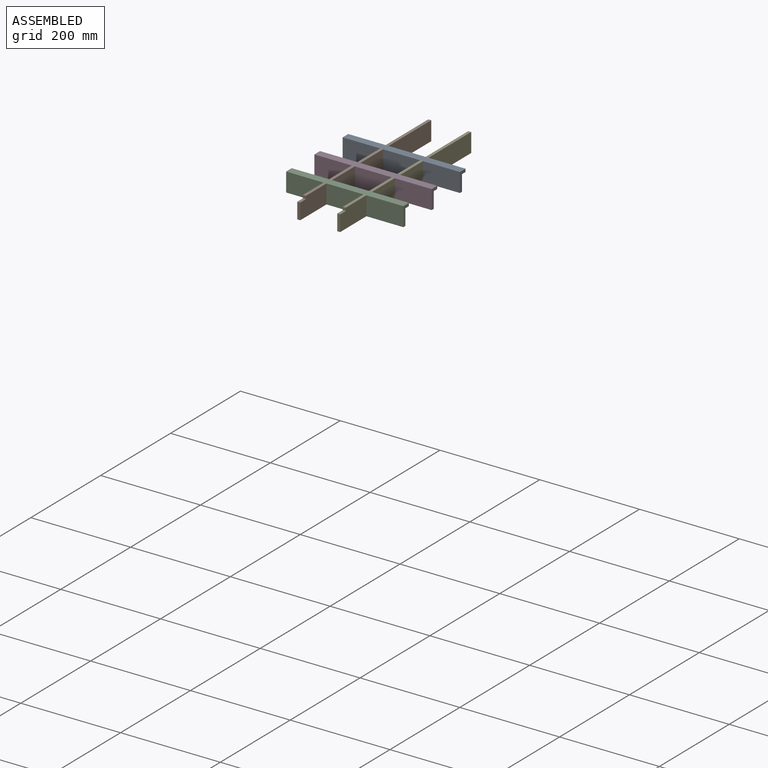
[diagram: assembled view]
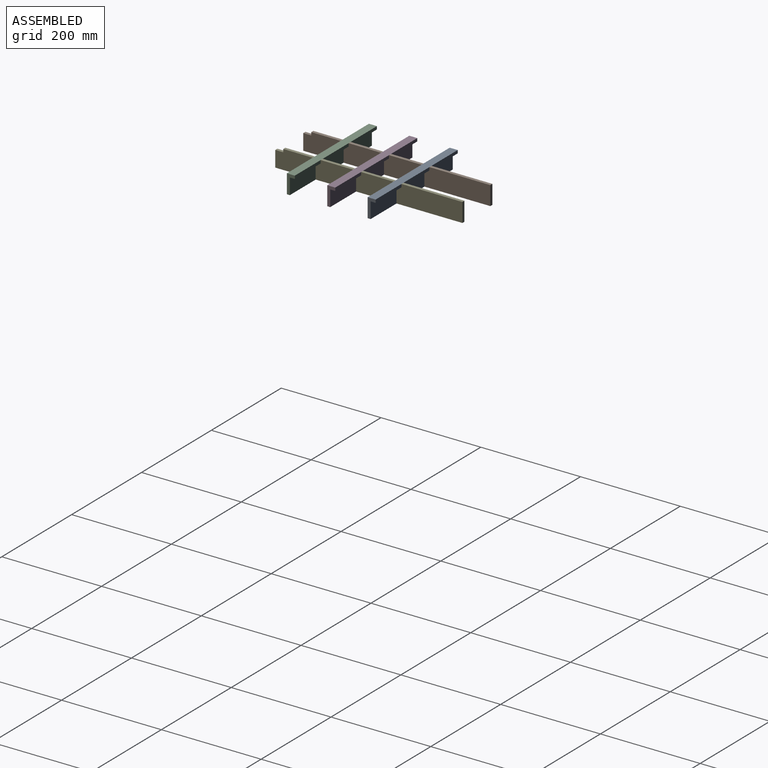
[diagram: assembled view, second angle]
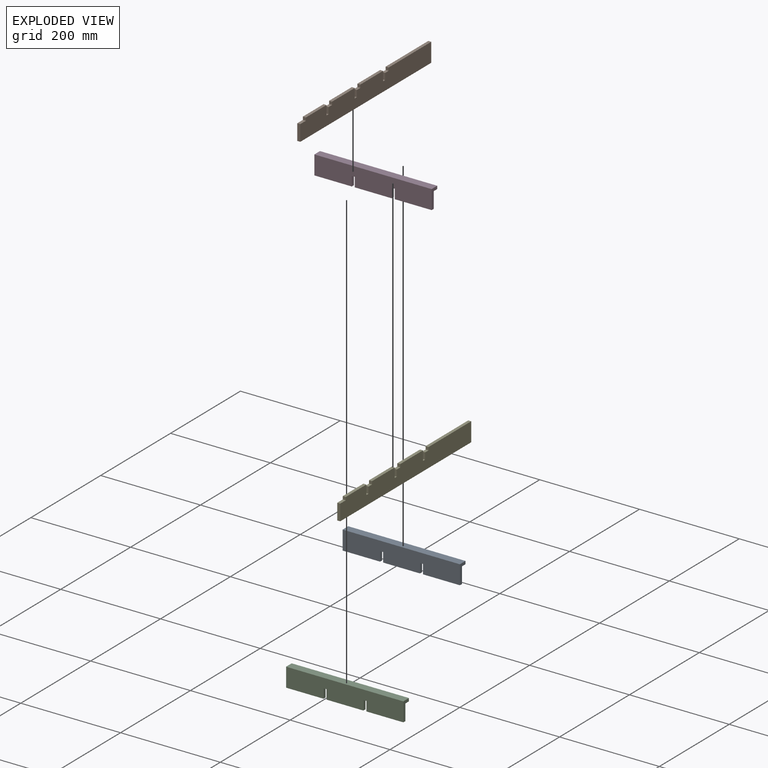
[diagram: exploded view]
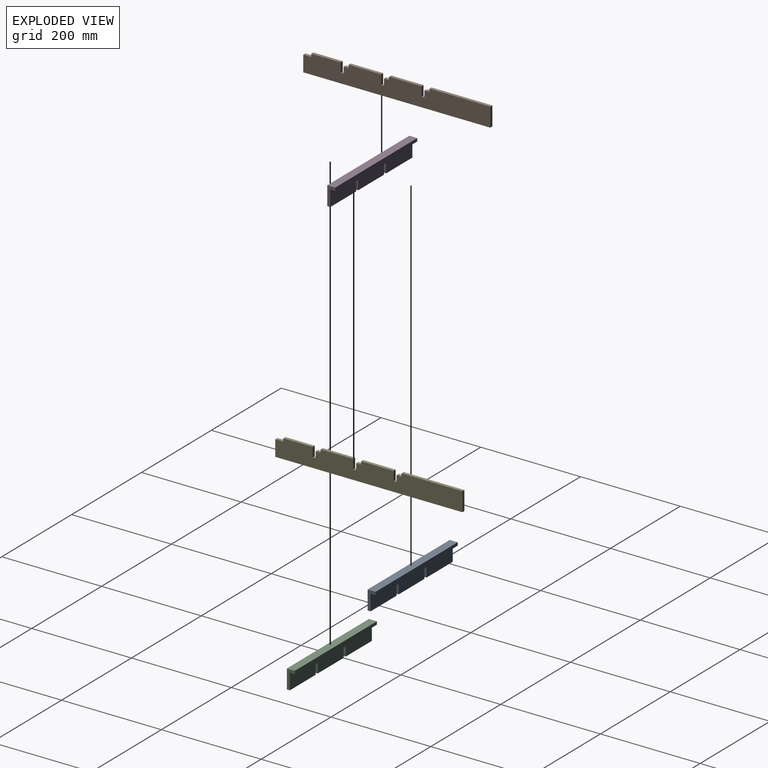
[diagram: exploded view, second angle]
ASSEMBLY  parts=5 mates=4
PART A: 16 faces, bbox 235x16x38 mm
  f0: plane 38x16mm, normal (-1,0,0), area 288mm2, adj f2,f11,f12,f13,f14,f15
  f1: plane 38x16mm, normal (1,0,0), area 288mm2, adj f2,f3,f12,f13,f14,f15
  f2: plane 235x38mm, normal (0,-1,0), area 8702mm2, adj f0,f1,f3,f4,f5,f6,f7,f8
  f3: plane 75x6mm, normal (0,0,1), area 450mm2, adj f1,f2,f4,f12
  f4: plane 19x6mm, normal (-1,0,0), area 114mm2, adj f2,f3,f5,f12
  f5: plane 6x6mm, normal (0,0,1), area 36mm2, adj f2,f4,f6,f12
  f6: plane 19x6mm, normal (1,0,0), area 114mm2, adj f2,f5,f7,f12
  f7: plane 74x6mm, normal (0,0,1), area 444mm2, adj f2,f6,f8,f12
  f8: plane 19x6mm, normal (-1,0,0), area 114mm2, adj f2,f7,f9,f12
  f9: plane 6x6mm, normal (0,0,1), area 36mm2, adj f2,f8,f10,f12
  f10: plane 19x6mm, normal (1,0,0), area 114mm2, adj f2,f9,f11,f12
  f11: plane 74x6mm, normal (0,0,1), area 444mm2, adj f0,f2,f10,f12
  f12: plane 235x32mm, normal (0,1,0), area 7292mm2, adj f0,f1,f3,f4,f5,f6,f7,f8
  f13: plane 235x10mm, normal (0,0,1), area 2350mm2, adj f0,f1,f12,f15
  f14: plane 235x16mm, normal (0,0,-1), area 3760mm2, adj f0,f1,f2,f15
  f15: plane 235x6mm, normal (0,1,0), area 1410mm2, adj f0,f1,f13,f14
PART B: 26 faces, bbox 6x375x38 mm
  f0: plane 6x6mm, normal (0,-1,0), area 36mm2, adj f1,f23,f24,f25
  f1: plane 65x6mm, normal (0,0,-1), area 390mm2, adj f0,f2,f24,f25
  f2: plane 19x6mm, normal (0,1,0), area 114mm2, adj f1,f3,f24,f25
  f3: plane 6x6mm, normal (0,0,-1), area 36mm2, adj f2,f4,f24,f25
  f4: plane 13x6mm, normal (0,-1,0), area 78mm2, adj f3,f5,f24,f25
  f5: plane 10x6mm, normal (0,0,-1), area 60mm2, adj f4,f6,f24,f25
  f6: plane 6x6mm, normal (0,-1,0), area 36mm2, adj f5,f7,f24,f25
  f7: plane 122x6mm, normal (0,0,-1), area 732mm2, adj f6,f8,f24,f25
  f8: plane 38x6mm, normal (0,1,0), area 228mm2, adj f7,f9,f24,f25
  f9: plane 375x6mm, normal (0,0,1), area 2250mm2, adj f8,f10,f24,f25
  f10: plane 32x6mm, normal (0,-1,0), area 192mm2, adj f9,f11,f24,f25
  f11: plane 16x6mm, normal (0,0,-1), area 96mm2, adj f10,f12,f24,f25
  f12: plane 6x6mm, normal (0,-1,0), area 36mm2, adj f11,f13,f24,f25
  f13: plane 59x6mm, normal (0,0,-1), area 354mm2, adj f12,f14,f24,f25
  f14: plane 19x6mm, normal (0,1,0), area 114mm2, adj f13,f15,f24,f25
  f15: plane 6x6mm, normal (0,0,-1), area 36mm2, adj f14,f16,f24,f25
  f16: plane 13x6mm, normal (0,-1,0), area 78mm2, adj f15,f17,f24,f25
  f17: plane 10x6mm, normal (0,0,-1), area 60mm2, adj f16,f18,f24,f25
  f18: plane 6x6mm, normal (0,-1,0), area 36mm2, adj f17,f19,f24,f25
  f19: plane 65x6mm, normal (0,0,-1), area 390mm2, adj f18,f20,f24,f25
  f20: plane 19x6mm, normal (0,1,0), area 114mm2, adj f19,f21,f24,f25
  f21: plane 6x6mm, normal (0,0,-1), area 36mm2, adj f20,f22,f24,f25
  f22: plane 13x6mm, normal (0,-1,0), area 78mm2, adj f21,f23,f24,f25
  f23: plane 10x6mm, normal (0,0,-1), area 60mm2, adj f0,f22,f24,f25
  f24: plane 375x38mm, normal (1,0,0), area 13632mm2, adj f0,f1,f2,f3,f4,f5,f6,f7
  f25: plane 375x38mm, normal (-1,0,0), area 13632mm2, adj f0,f1,f2,f3,f4,f5,f6,f7
PART C: same geometry as A
PART D: same geometry as A
PART E: same geometry as B
PLACE A rot(axis=(0,-1,0),180deg) t=(48.11,55.5,-4.69)mm
PLACE B rot(axis=(0,-1,0),180deg) t=(11.61,0,-4.69)mm fixed
PLACE C rot(axis=(0,-1,0),180deg) t=(48.11,-106.5,-4.69)mm
PLACE D rot(axis=(0,-1,0),180deg) t=(48.11,-25.5,-4.69)mm
PLACE E rot(axis=(0,-1,0),180deg) t=(91.61,0,-4.69)mm
MATE fastened A.f5 <-> B.f3  axis (0,0,-1) through (8.61,52.5,-4.69)mm
MATE fastened D.f5 <-> B.f21  axis (0,0,-1) through (8.61,-28.5,-4.69)mm
MATE fastened B.f15 <-> C.f5  axis (0,0,1) through (8.61,-109.5,-4.69)mm
MATE fastened C.f9 <-> E.f15  axis (0,0,-1) through (88.61,-109.5,-4.69)mm
